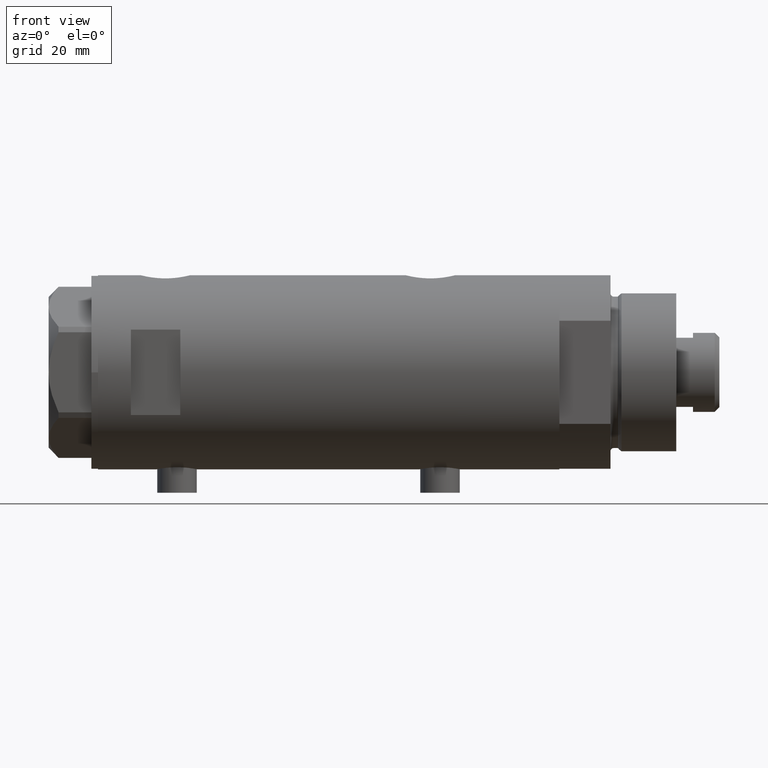
[diagram: clean part render]
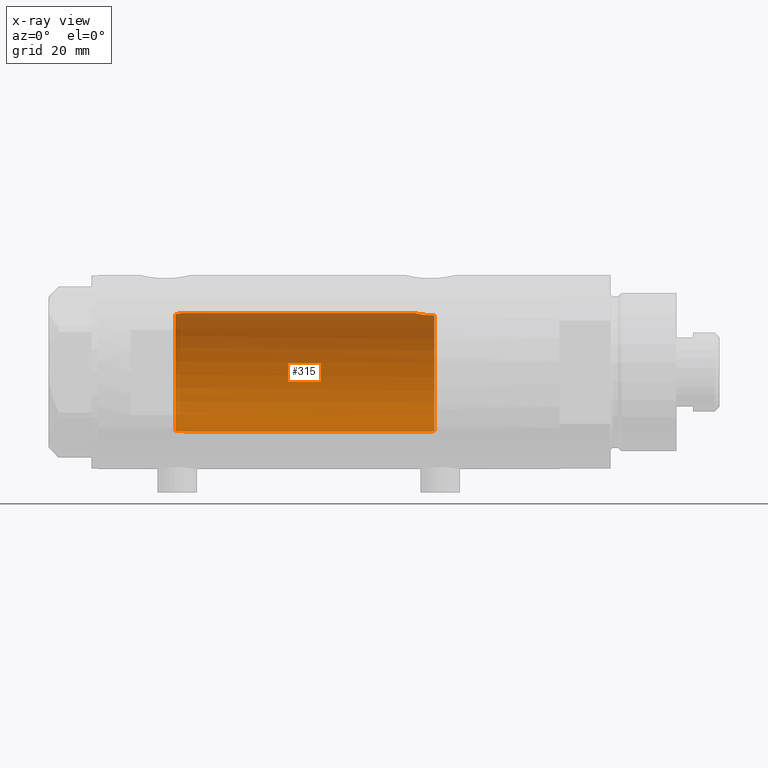
[diagram: x-ray — body ghosted, one internal face saturated and labeled with its STEP entity id]
A machine part, front view, then the same camera in x-ray: the body is ghosted and one INTERNAL B-rep face — a face not visible from any outside direction — is saturated and labeled: STEP entity #315.
In plain terms, the highlighted cylindrical surface (partial cylindrical patch) has radius 18 mm, axis along (1, 0, -0).
Its self-contained STEP definition (entity closure, byte-faithful):
#97 = EDGE_CURVE ( 'NONE', #4468, #4260, #2701, .T. ) ;
#151 = DIRECTION ( 'NONE',  ( -0.000000000000000000, -0.000000000000000000, -1.000000000000000000 ) ) ;
#196 = VERTEX_POINT ( 'NONE', #4040 ) ;
#264 = CARTESIAN_POINT ( 'NONE',  ( 17.98587882862718601, 0.7362002489460848231, -26.08746722239206761 ) ) ;
#274 = VERTEX_POINT ( 'NONE', #4486 ) ;
#279 = CARTESIAN_POINT ( 'NONE',  ( -17.93028482699292425, 1.588885888720747319, -31.86224988169317740 ) ) ;
#302 = CARTESIAN_POINT ( 'NONE',  ( -17.98949107760678245, 0.6899666364176350042, -31.37303358989279545 ) ) ;
#314 = CARTESIAN_POINT ( 'NONE',  ( 17.35631194664785681, 4.771042759406570077, -29.89667763205954643 ) ) ;
#315 = ADVANCED_FACE ( 'NONE', ( #1136 ), #439, .F. ) ;
#416 = CARTESIAN_POINT ( 'NONE',  ( -17.82614870471583401, 2.495683684402668412, 45.86291490437698570 ) ) ;
#439 = CYLINDRICAL_SURFACE ( 'NONE', #1466, 18.00000000000000000 ) ;
#450 = ORIENTED_EDGE ( 'NONE', *, *, #526, .F. ) ;
#526 = EDGE_CURVE ( 'NONE', #1534, #196, #4427, .T. ) ;
#578 = CARTESIAN_POINT ( 'NONE',  ( 17.34085862114803334, 4.826483754267694160, -30.26145238513612767 ) ) ;
#605 = CARTESIAN_POINT ( 'NONE',  ( 18.00000000000000355, 0.1844036484100888829, -26.03499999999999659 ) ) ;
#626 = CARTESIAN_POINT ( 'NONE',  ( 17.41328271218089441, 4.558641711475903691, -29.19087254718659352 ) ) ;
#651 = CARTESIAN_POINT ( 'NONE',  ( 17.78478726694685363, 2.779555353823084385, -26.90297143050466389 ) ) ;
#662 = CIRCLE ( 'NONE', #1273, 18.00000000000000000 ) ;
#681 = CARTESIAN_POINT ( 'NONE',  ( 17.33118376015917761, 4.861110225087389658, -30.63112109378173287 ) ) ;
#693 = CARTESIAN_POINT ( 'NONE',  ( -17.96336505771914105, 1.158437137172629861, -31.57804627005672415 ) ) ;
#714 = CARTESIAN_POINT ( 'NONE',  ( 0.000000000000000000, 0.000000000000000000, 46.59999999999999432 ) ) ;
#784 = CARTESIAN_POINT ( 'NONE',  ( -17.95816418424195149, 1.237771781631973544, 43.92014148713398924 ) ) ;
#817 = VECTOR ( 'NONE', #4137, 1000.000000000000000 ) ;
#861 = CARTESIAN_POINT ( 'NONE',  ( -18.00000000000000000, 0.3684436523298872390, 43.59999999999999432 ) ) ;
#946 = CARTESIAN_POINT ( 'NONE',  ( 17.68656644271517919, 3.347025706529857647, -27.36453774950910756 ) ) ;
#993 = CARTESIAN_POINT ( 'NONE',  ( 17.68814035493779357, 3.348626323852638365, 46.05183600219630335 ) ) ;
#1000 = ORIENTED_EDGE ( 'NONE', *, *, #2450, .F. ) ;
#1136 = FACE_OUTER_BOUND ( 'NONE', #3708, .T. ) ;
#1155 = LINE ( 'NONE', #4089, #817 ) ;
#1158 = DIRECTION ( 'NONE',  ( -0.000000000000000000, -0.000000000000000000, -1.000000000000000000 ) ) ;
#1165 = CARTESIAN_POINT ( 'NONE',  ( -17.88283752013080274, 2.053809615874006678, 44.66247768058084944 ) ) ;
#1188 = CARTESIAN_POINT ( 'NONE',  ( -17.92135699193088882, 1.687027558082476064, 44.24588287565643441 ) ) ;
#1217 = CARTESIAN_POINT ( 'NONE',  ( -17.82749843654113420, 2.486298441295540229, 46.41967494109754000 ) ) ;
#1234 = LINE ( 'NONE', #3062, #2664 ) ;
#1241 = VERTEX_POINT ( 'NONE', #1863 ) ;
#1273 = AXIS2_PLACEMENT_3D ( 'NONE', #714, #2608, #3773 ) ;
#1296 = CARTESIAN_POINT ( 'NONE',  ( 17.78617492856930227, 2.770629413254892537, 45.59682049650071178 ) ) ;
#1328 = EDGE_CURVE ( 'NONE', #274, #4260, #2895, .T. ) ;
#1396 = CARTESIAN_POINT ( 'NONE',  ( 17.91007218376326193, 1.805463612197654166, 45.07866376881659676 ) ) ;
#1466 = AXIS2_PLACEMENT_3D ( 'NONE', #2621, #1158, #4092 ) ;
#1511 = EDGE_CURVE ( 'NONE', #1241, #2981, #1234, .T. ) ;
#1534 = VERTEX_POINT ( 'NONE', #3763 ) ;
#1579 = CARTESIAN_POINT ( 'NONE',  ( -18.00000000000000000, 3.061617490167439571E-16, 43.59999999999999432 ) ) ;
#1686 = CARTESIAN_POINT ( 'NONE',  ( 0.000000000000000000, 0.000000000000000000, -32.09999999999998721 ) ) ;
#1699 = CARTESIAN_POINT ( 'NONE',  ( 17.94405978035183935, 1.463580074031384681, -26.24553017623722795 ) ) ;
#1720 = CARTESIAN_POINT ( 'NONE',  ( 17.83051055968251930, 2.469307448774135771, -26.70420614498792133 ) ) ;
#1747 = CARTESIAN_POINT ( 'NONE',  ( 17.76085061188611292, 2.927954048074870030, -27.01043039029093151 ) ) ;
#1758 = VERTEX_POINT ( 'NONE', #2518 ) ;
#1769 = CARTESIAN_POINT ( 'NONE',  ( 17.83158514913445103, 2.461498934476296085, 45.39965995681277633 ) ) ;
#1778 = DIRECTION ( 'NONE',  ( 0.000000000000000000, 0.000000000000000000, -1.000000000000000000 ) ) ;
#1795 = CARTESIAN_POINT ( 'NONE',  ( 17.33262691996380767, 4.855935766715061774, -31.37488940890200695 ) ) ;
#1805 = CARTESIAN_POINT ( 'NONE',  ( -17.98790814410162042, 0.7389993272946837610, 43.68352974933832655 ) ) ;
#1856 = ORIENTED_EDGE ( 'NONE', *, *, #1328, .T. ) ;
#1863 = CARTESIAN_POINT ( 'NONE',  ( -18.00000000000000000, 3.061617490167439571E-16, 43.59999999999999432 ) ) ;
#1972 = CARTESIAN_POINT ( 'NONE',  ( -17.87088460660653766, 2.153683778660673287, 44.81724841463823594 ) ) ;
#2125 = CARTESIAN_POINT ( 'NONE',  ( 18.00000000000000000, 0.000000000000000000, 44.73499999999999233 ) ) ;
#2353 = AXIS2_PLACEMENT_3D ( 'NONE', #1686, #1778, #3168 ) ;
#2359 = ORIENTED_EDGE ( 'NONE', *, *, #2589, .F. ) ;
#2423 = CARTESIAN_POINT ( 'NONE',  ( 17.43128843254318028, 4.489613141718952427, -29.01700003713170517 ) ) ;
#2443 = CARTESIAN_POINT ( 'NONE',  ( 17.63704841537101231, 3.603891093161669890, 46.31145343596539732 ) ) ;
#2449 = CARTESIAN_POINT ( 'NONE',  ( 17.37157951943346035, 4.714681855650494136, -32.09999999999998721 ) ) ;
#2450 = EDGE_CURVE ( 'NONE', #196, #4468, #1155, .T. ) ;
#2462 = CARTESIAN_POINT ( 'NONE',  ( -17.91832049203241439, 1.716810780632728184, -31.97468596615661696 ) ) ;
#2474 = CARTESIAN_POINT ( 'NONE',  ( 17.99716691696286119, 0.3685254503903833134, -26.04545042928660337 ) ) ;
#2511 = CARTESIAN_POINT ( 'NONE',  ( 17.76196254920472128, 2.921230608637938264, 45.70535341986154521 ) ) ;
#2518 = CARTESIAN_POINT ( 'NONE',  ( -17.83255450012701004, 2.449489742783180546, 46.59999999999999432 ) ) ;
#2589 = EDGE_CURVE ( 'NONE', #1241, #1758, #3888, .T. ) ;
#2608 = DIRECTION ( 'NONE',  ( 0.000000000000000000, 0.000000000000000000, 1.000000000000000000 ) ) ;
#2621 = CARTESIAN_POINT ( 'NONE',  ( 0.000000000000000000, 0.000000000000000000, 70.09999999999999432 ) ) ;
#2664 = VECTOR ( 'NONE', #151, 1000.000000000000000 ) ;
#2701 = B_SPLINE_CURVE_WITH_KNOTS ( 'NONE', 3,
 ( #4335, #605, #2474, #264, #4262, #1699, #3639, #3563, #1720, #651, #1747, #3944, #946, #3278, #3231, #3202, #4355, #2423, #626, #2885, #314, #578, #681, #4284, #1795, #3180, #2449 ),
 .UNSPECIFIED., .F., .F.,
 ( 4, 2, 2, 2, 2, 2, 2, 2, 2, 2, 1, 2, 2, 4 ),
 ( 0.01528157848519460724, 0.01583467956029641077, 0.01638778063539821778, 0.01749398278560182485, 0.01804708386070362838, 0.01860018493580543539, 0.01915328601090723892, 0.01970638708600904593, 0.02081258923621266341, 0.02136569031131447041, 0.02191879138641628089, 0.02247189246151808789, 0.02302499353661989837, 0.02413119568682349503 ),
 .UNSPECIFIED. ) ;
#2809 = CARTESIAN_POINT ( 'NONE',  ( 17.94167814235965608, 1.458276351914867375, 44.95504464479716233 ) ) ;
#2858 = CARTESIAN_POINT ( 'NONE',  ( 17.98843015915091570, 0.7391836159806497442, 44.77731130524778536 ) ) ;
#2885 = CARTESIAN_POINT ( 'NONE',  ( 17.38237957915196930, 4.675094569549004930, -29.54138980228257338 ) ) ;
#2895 = CIRCLE ( 'NONE', #2353, 18.00000000000000000 ) ;
#2981 = VERTEX_POINT ( 'NONE', #3711 ) ;
#3062 = CARTESIAN_POINT ( 'NONE',  ( -18.00000000000000000, 0.000000000000000000, 70.09999999999999432 ) ) ;
#3064 = CARTESIAN_POINT ( 'NONE',  ( -17.85029215802978086, 2.318176074868584902, 45.14613149013026572 ) ) ;
#3091 = CARTESIAN_POINT ( 'NONE',  ( -17.82508408272473588, 2.503276281002380976, 46.23510831259082465 ) ) ;
#3166 = ORIENTED_EDGE ( 'NONE', *, *, #3595, .F. ) ;
#3168 = DIRECTION ( 'NONE',  ( -1.000000000000000000, 0.000000000000000000, 0.000000000000000000 ) ) ;
#3170 = CARTESIAN_POINT ( 'NONE',  ( 17.37157951943346035, 4.714681855650494136, -32.09999999999998721 ) ) ;
#3176 = CARTESIAN_POINT ( 'NONE',  ( 17.89217382667230538, 1.974183297225218015, 45.14981302266163965 ) ) ;
#3180 = CARTESIAN_POINT ( 'NONE',  ( 17.34671983132638928, 4.806279138776324622, -31.74012329268312982 ) ) ;
#3202 = CARTESIAN_POINT ( 'NONE',  ( 17.53642083926971651, 4.065376572064631766, -28.20260027543616133 ) ) ;
#3225 = CARTESIAN_POINT ( 'NONE',  ( 18.00000000000001066, 0.3728474842072352358, 44.73499999999999233 ) ) ;
#3231 = CARTESIAN_POINT ( 'NONE',  ( 17.61032289555864949, 3.726910670425181316, -27.76756985850231274 ) ) ;
#3244 = CARTESIAN_POINT ( 'NONE',  ( -18.00000000000000711, 0.3463326441765515185, -31.30000000000000071 ) ) ;
#3250 = CARTESIAN_POINT ( 'NONE',  ( 17.95540531162507136, 1.279032093992328756, 44.90250861430337892 ) ) ;
#3278 = CARTESIAN_POINT ( 'NONE',  ( 17.63589737371338728, 3.604488512479870899, -27.62742655266249514 ) ) ;
#3407 = CARTESIAN_POINT ( 'NONE',  ( -17.83255450012701004, 2.449489742783180546, 46.59999999999999432 ) ) ;
#3414 = B_SPLINE_CURVE_WITH_KNOTS ( 'NONE', 3,
 ( #3648, #2462, #279, #4693, #693, #302, #3244, #3627 ),
 .UNSPECIFIED., .F., .F.,
 ( 4, 2, 2, 4 ),
 ( 0.01360098575045322854, 0.01411306367951528987, 0.01462514160857735120, 0.01564929746670147212 ),
 .UNSPECIFIED. ) ;
#3563 = CARTESIAN_POINT ( 'NONE',  ( 17.85236636886078188, 2.306694554785099882, -26.61264586133006205 ) ) ;
#3584 = ORIENTED_EDGE ( 'NONE', *, *, #1511, .T. ) ;
#3595 = EDGE_CURVE ( 'NONE', #274, #2981, #3414, .T. ) ;
#3627 = CARTESIAN_POINT ( 'NONE',  ( -18.00000000000000000, 0.000000000000000000, -31.29999999999999361 ) ) ;
#3639 = CARTESIAN_POINT ( 'NONE',  ( 17.91189082287941758, 1.809824880389070856, -26.36912370284669294 ) ) ;
#3648 = CARTESIAN_POINT ( 'NONE',  ( -17.90642342847950275, 1.833030277983155099, -32.09999999999931930 ) ) ;
#3708 = EDGE_LOOP ( 'NONE', ( #1000, #450, #4642, #2359, #3584, #3166, #1856, #4740 ) ) ;
#3711 = CARTESIAN_POINT ( 'NONE',  ( -18.00000000000000000, 0.000000000000000000, -31.29999999999999361 ) ) ;
#3733 = CARTESIAN_POINT ( 'NONE',  ( 18.00000000000000000, 5.958021437579254357E-16, -26.03499999999998948 ) ) ;
#3734 = EDGE_CURVE ( 'NONE', #1534, #1758, #662, .T. ) ;
#3737 = CARTESIAN_POINT ( 'NONE',  ( -17.90830209998921063, 1.818440982043828980, 44.37434744171714129 ) ) ;
#3763 = CARTESIAN_POINT ( 'NONE',  ( 17.58783030962034033, 3.829911878881814058, 46.59999999999999432 ) ) ;
#3773 = DIRECTION ( 'NONE',  ( 1.000000000000000000, 0.000000000000000000, 0.000000000000000000 ) ) ;
#3888 = B_SPLINE_CURVE_WITH_KNOTS ( 'NONE', 3,
 ( #1579, #861, #1805, #784, #4100, #1188, #3737, #1165, #1972, #3064, #4515, #4542, #416, #3091, #1217, #3407 ),
 .UNSPECIFIED., .F., .F.,
 ( 4, 2, 2, 2, 2, 2, 2, 4 ),
 ( 0.007825597788866840016, 0.008929372539743372916, 0.009481259915181635897, 0.01003314729061989888, 0.01058503466605816012, 0.01113692204149642484, 0.01168880941693468609, 0.01224069679237294907 ),
 .UNSPECIFIED. ) ;
#3944 = CARTESIAN_POINT ( 'NONE',  ( 17.71174132276682300, 3.211689381115074404, -27.24121359250871421 ) ) ;
#4040 = CARTESIAN_POINT ( 'NONE',  ( 18.00000000000000000, 0.000000000000000000, 44.73499999999999233 ) ) ;
#4089 = CARTESIAN_POINT ( 'NONE',  ( 18.00000000000000000, 2.204364238465235033E-15, 70.09999999999999432 ) ) ;
#4092 = DIRECTION ( 'NONE',  ( -1.000000000000000000, 0.000000000000000000, 0.000000000000000000 ) ) ;
#4100 = CARTESIAN_POINT ( 'NONE',  ( -17.94624864476197601, 1.397590066628590089, 44.01900161024211400 ) ) ;
#4137 = DIRECTION ( 'NONE',  ( -0.000000000000000000, -0.000000000000000000, -1.000000000000000000 ) ) ;
#4258 = CARTESIAN_POINT ( 'NONE',  ( 17.58783030962034033, 3.829911878881814058, 46.59999999999999432 ) ) ;
#4260 = VERTEX_POINT ( 'NONE', #3170 ) ;
#4262 = CARTESIAN_POINT ( 'NONE',  ( 17.97733715731490989, 0.9209699998971186963, -26.11935966604423598 ) ) ;
#4284 = CARTESIAN_POINT ( 'NONE',  ( 17.32928165965088141, 4.867855194001449171, -30.81899018256647693 ) ) ;
#4335 = CARTESIAN_POINT ( 'NONE',  ( 18.00000000000000000, 5.958021437579254357E-16, -26.03499999999998948 ) ) ;
#4355 = CARTESIAN_POINT ( 'NONE',  ( 17.49030773641652914, 4.256160900234553068, -28.51469509681785652 ) ) ;
#4427 = B_SPLINE_CURVE_WITH_KNOTS ( 'NONE', 3,
 ( #4258, #2443, #993, #2511, #1296, #1769, #4722, #3176, #1396, #2809, #3250, #2858, #3225, #2125 ),
 .UNSPECIFIED., .F., .F.,
 ( 4, 2, 2, 2, 2, 2, 4 ),
 ( 0.02614985543880328500, 0.02725214354003946404, 0.02780328759065755356, 0.02835443164127564308, 0.02890557569189372913, 0.02945671974251181865, 0.03055900784374799770 ),
 .UNSPECIFIED. ) ;
#4468 = VERTEX_POINT ( 'NONE', #3733 ) ;
#4486 = CARTESIAN_POINT ( 'NONE',  ( -17.90642342847950275, 1.833030277983155099, -32.09999999999931930 ) ) ;
#4515 = CARTESIAN_POINT ( 'NONE',  ( -17.84158955897572341, 2.383204526717108696, 45.32263758307627910 ) ) ;
#4542 = CARTESIAN_POINT ( 'NONE',  ( -17.82958311517956673, 2.471426257451379449, 45.68046645260446326 ) ) ;
#4642 = ORIENTED_EDGE ( 'NONE', *, *, #3734, .T. ) ;
#4693 = CARTESIAN_POINT ( 'NONE',  ( -17.95286768021396995, 1.309280107997290443, -31.66336257470373639 ) ) ;
#4722 = CARTESIAN_POINT ( 'NONE',  ( 17.85293122918850273, 2.302201220737755794, 45.31031080804816469 ) ) ;
#4740 = ORIENTED_EDGE ( 'NONE', *, *, #97, .F. ) ;